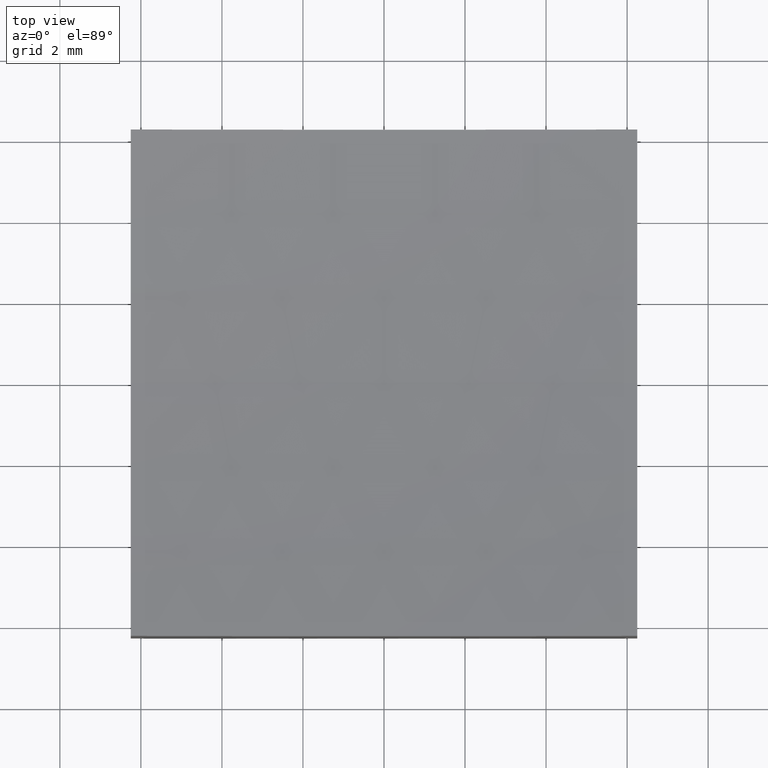
[diagram: clean part render]
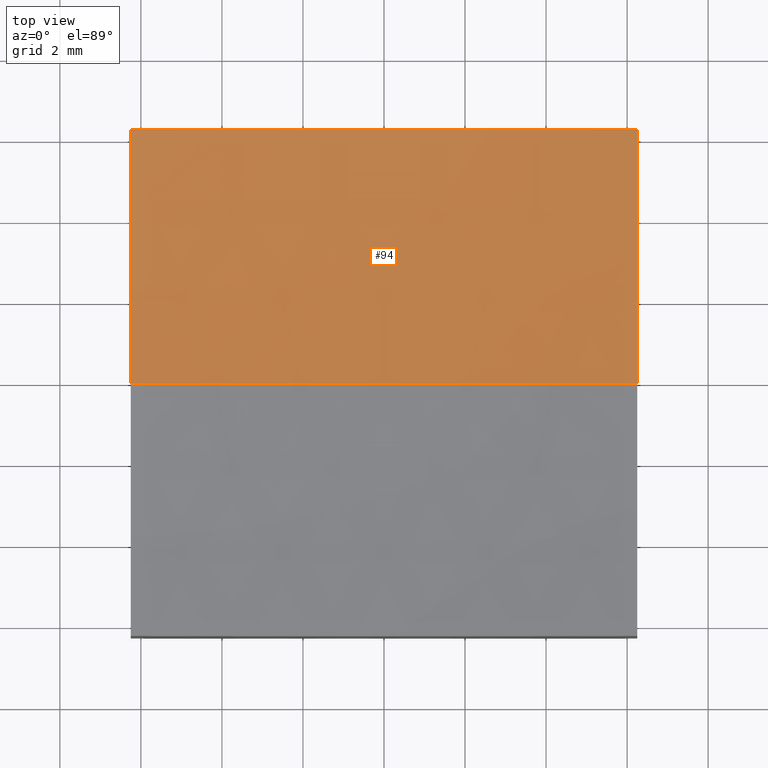
[diagram: same view with one face highlighted and labeled with its STEP entity id]
A machine part, top view. The second image highlights one B-rep face of the part: STEP entity #94.
In plain terms, the highlighted spherical surface has radius 60 mm.
Its self-contained STEP definition (entity closure, byte-faithful):
#13 = CARTESIAN_POINT ( 'NONE',  ( 6.250000000000000000, 6.250000000000000888, 3.654612647653911139 ) ) ;
#21 = AXIS2_PLACEMENT_3D ( 'NONE', #71, #120, #139 ) ;
#29 = DIRECTION ( 'NONE',  ( 1.000000000000000000, 0.0000000000000000000, -0.0000000000000000000 ) ) ;
#33 = DIRECTION ( 'NONE',  ( 1.000000000000000000, 0.0000000000000000000, -0.0000000000000000000 ) ) ;
#35 = DIRECTION ( 'NONE',  ( 0.0000000000000000000, 0.0000000000000000000, 1.000000000000000000 ) ) ;
#36 = DIRECTION ( 'NONE',  ( -1.000000000000000000, 1.224646799147352961E-16, 0.0000000000000000000 ) ) ;
#39 = ORIENTED_EDGE ( 'NONE', *, *, #155, .F. ) ;
#47 = CARTESIAN_POINT ( 'NONE',  ( 6.250000000000000000, 0.0000000000000000000, 3.326408688599950647 ) ) ;
#51 = CARTESIAN_POINT ( 'NONE',  ( -6.250000000000000000, 7.654042494670961551E-16, 3.326408688599950647 ) ) ;
#54 = CARTESIAN_POINT ( 'NONE',  ( -6.250000000000000000, 6.250000000000000888, 3.654612647653911139 ) ) ;
#64 = DIRECTION ( 'NONE',  ( -0.0000000000000000000, 1.000000000000000000, 0.0000000000000000000 ) ) ;
#70 = CARTESIAN_POINT ( 'NONE',  ( 6.210401153283149838E-15, 0.0000000000000000000, 3.000000000000002665 ) ) ;
#71 = CARTESIAN_POINT ( 'NONE',  ( 7.715274834628325378E-15, 0.0000000000000000000, 63.00000000000000000 ) ) ;
#78 = CIRCLE ( 'NONE', #21, 60.00000000000000000 ) ;
#80 = VERTEX_POINT ( 'NONE', #47 ) ;
#81 = CIRCLE ( 'NONE', #226, 60.00000000000000000 ) ;
#84 = ORIENTED_EDGE ( 'NONE', *, *, #240, .T. ) ;
#89 = DIRECTION ( 'NONE',  ( 0.0000000000000000000, 0.0000000000000000000, -1.000000000000000000 ) ) ;
#91 = AXIS2_PLACEMENT_3D ( 'NONE', #206, #64, #209 ) ;
#94 = ADVANCED_FACE ( 'NONE', ( #245 ), #244, .F. ) ;
#98 = VERTEX_POINT ( 'NONE', #51 ) ;
#111 = DIRECTION ( 'NONE',  ( 1.224646799147353207E-16, 1.000000000000000000, -1.057036347494339336E-32 ) ) ;
#113 = CIRCLE ( 'NONE', #152, 59.67359131140005246 ) ;
#117 = EDGE_LOOP ( 'NONE', ( #39, #161, #84, #181, #172 ) ) ;
#120 = DIRECTION ( 'NONE',  ( 0.0000000000000000000, -1.000000000000000000, -0.0000000000000000000 ) ) ;
#122 = CARTESIAN_POINT ( 'NONE',  ( 6.250000000000000000, 0.0000000000000000000, 63.00000000000000000 ) ) ;
#123 = CARTESIAN_POINT ( 'NONE',  ( -6.250000000000000000, 0.0000000000000000000, 63.00000000000000000 ) ) ;
#126 = EDGE_CURVE ( 'NONE', #98, #178, #113, .T. ) ;
#128 = AXIS2_PLACEMENT_3D ( 'NONE', #122, #33, #183 ) ;
#133 = VERTEX_POINT ( 'NONE', #70 ) ;
#139 = DIRECTION ( 'NONE',  ( 0.0000000000000000000, 0.0000000000000000000, -1.000000000000000000 ) ) ;
#141 = AXIS2_PLACEMENT_3D ( 'NONE', #212, #251, #35 ) ;
#146 = EDGE_CURVE ( 'NONE', #239, #178, #216, .T. ) ;
#152 = AXIS2_PLACEMENT_3D ( 'NONE', #123, #29, #89 ) ;
#153 = CIRCLE ( 'NONE', #128, 59.67359131140005246 ) ;
#155 = EDGE_CURVE ( 'NONE', #133, #98, #81, .T. ) ;
#161 = ORIENTED_EDGE ( 'NONE', *, *, #249, .T. ) ;
#172 = ORIENTED_EDGE ( 'NONE', *, *, #126, .F. ) ;
#173 = CARTESIAN_POINT ( 'NONE',  ( 7.715274834628325378E-15, 0.0000000000000000000, 63.00000000000000000 ) ) ;
#178 = VERTEX_POINT ( 'NONE', #54 ) ;
#181 = ORIENTED_EDGE ( 'NONE', *, *, #146, .T. ) ;
#183 = DIRECTION ( 'NONE',  ( 0.0000000000000000000, 0.0000000000000000000, -1.000000000000000000 ) ) ;
#206 = CARTESIAN_POINT ( 'NONE',  ( 7.715274834628325378E-15, 0.0000000000000000000, 63.00000000000000000 ) ) ;
#209 = DIRECTION ( 'NONE',  ( 1.000000000000000000, 0.0000000000000000000, 0.0000000000000000000 ) ) ;
#212 = CARTESIAN_POINT ( 'NONE',  ( 7.715274834628325378E-15, 6.250000000000000888, 63.00000000000000000 ) ) ;
#216 = CIRCLE ( 'NONE', #141, 59.67359131140004536 ) ;
#226 = AXIS2_PLACEMENT_3D ( 'NONE', #173, #111, #36 ) ;
#239 = VERTEX_POINT ( 'NONE', #13 ) ;
#240 = EDGE_CURVE ( 'NONE', #80, #239, #153, .T. ) ;
#244 = SPHERICAL_SURFACE ( 'NONE', #91, 60.00000000000000000 ) ;
#245 = FACE_OUTER_BOUND ( 'NONE', #117, .T. ) ;
#249 = EDGE_CURVE ( 'NONE', #133, #80, #78, .T. ) ;
#251 = DIRECTION ( 'NONE',  ( 0.0000000000000000000, 1.000000000000000000, 0.0000000000000000000 ) ) ;